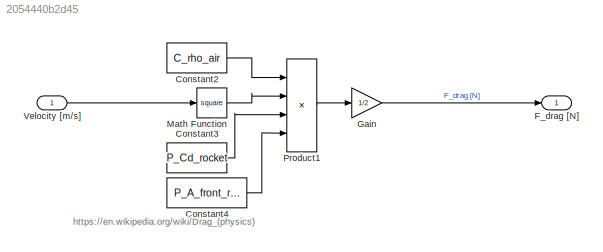
MODEL slx_2054440b2d45
KIND model
CONFIG AbsTol = auto
CONFIG EnableMultiTasking = off
CONFIG FixedStep = auto
CONFIG MaxStep = auto
CONFIG MinStep = auto
CONFIG RelTol = 1e-3
CONFIG SampleTimeConstraint = Unconstrained
CONFIG SolverName = FixedStepAuto
CONFIG StartTime = 0.0
CONFIG StopTime = 10.0
BLOCK [Constant] Constant2
  Value = C_rho_air
BLOCK [Constant] Constant3
  Value = P_Cd_rocket
BLOCK [Constant] Constant4
  Value = P_A_front_rocket
BLOCK [Outport] F_drag [N]
BLOCK [Gain] Gain
  Gain = 1/2
BLOCK [Math] Math Function
  Operator = square
  Ports = [1, 1]
BLOCK [Product] Product1
  Inputs = 4
  Ports = [4, 1]
BLOCK [Inport] Velocity [m//s]
ANNOTATION (root): https://en.wikipedia.org/wiki/Drag_(physics)
LINE Constant2:1 -> Product1:1
LINE Constant3:1 -> Product1:3
LINE Constant4:1 -> Product1:4
LINE Gain:1 -> F_drag [N]:1
LINE Math Function:1 -> Product1:2
LINE Product1:1 -> Gain:1
LINE Velocity [m//s]:1 -> Math Function:1
